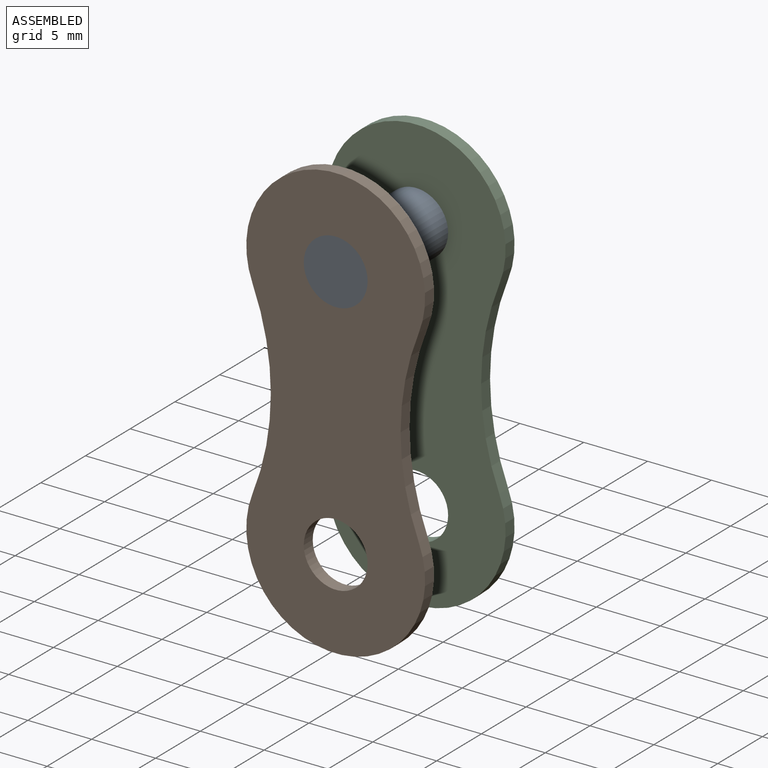
[diagram: assembled view]
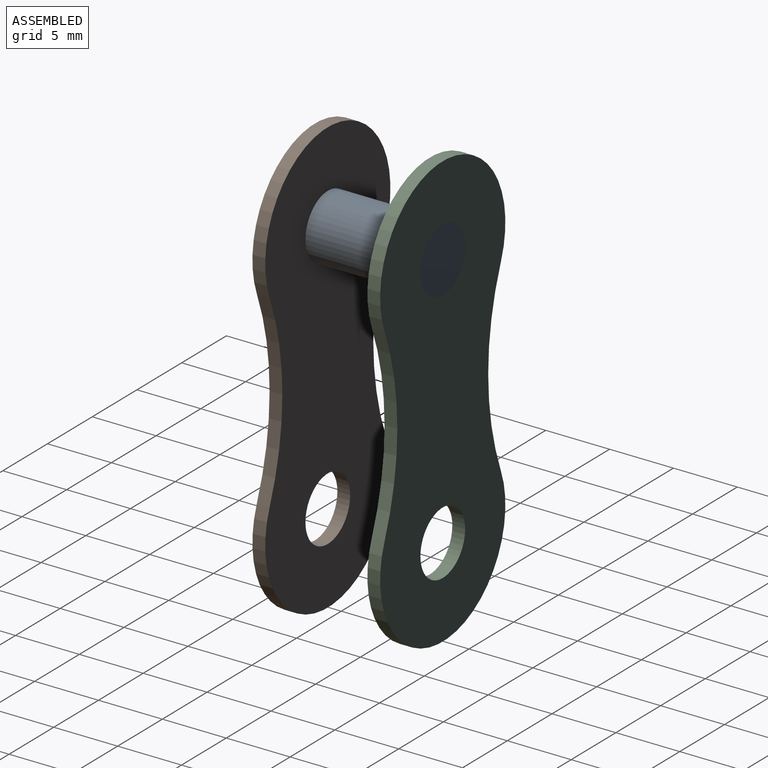
[diagram: assembled view, second angle]
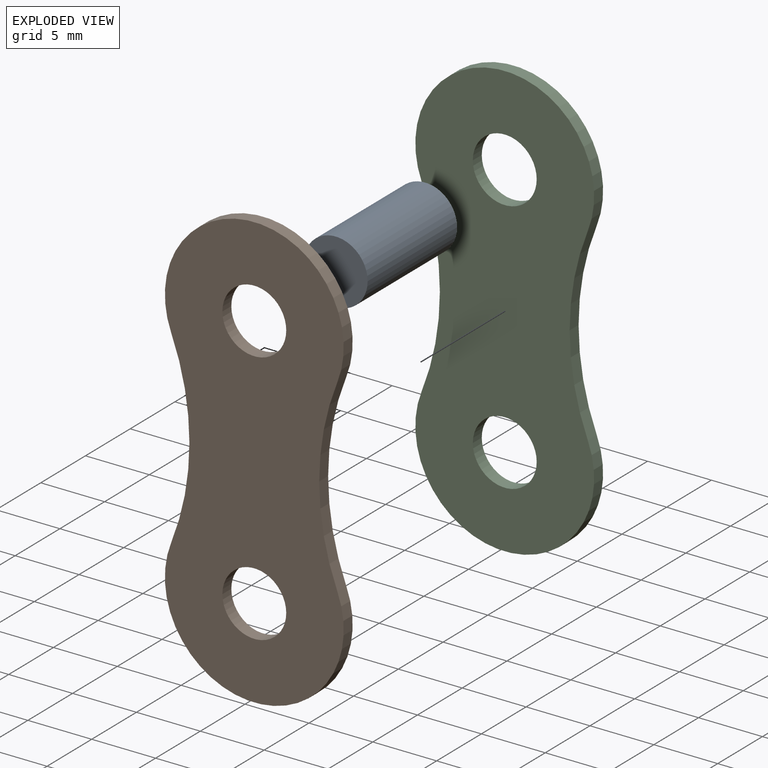
[diagram: exploded view]
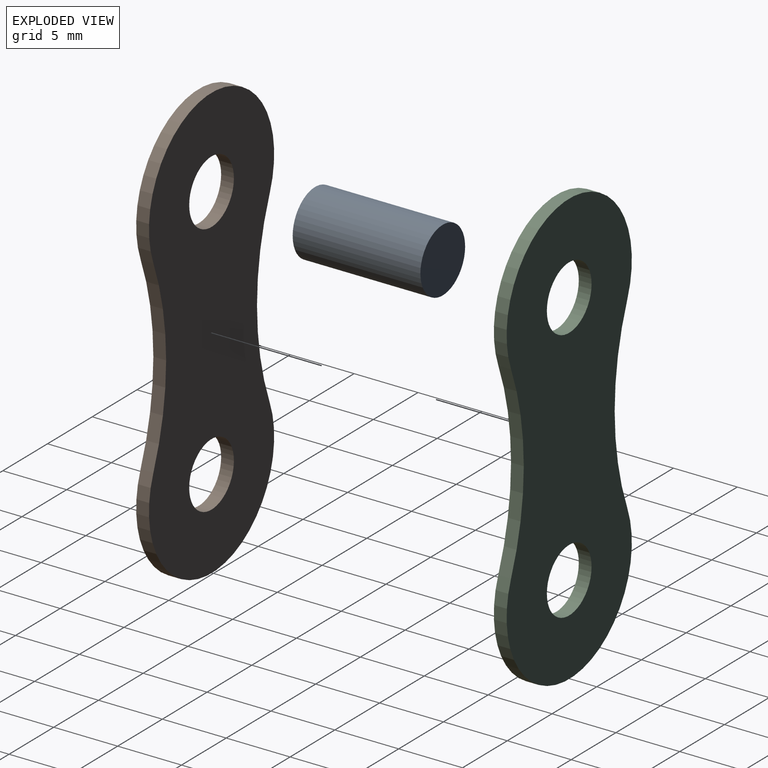
[diagram: exploded view, second angle]
ASSEMBLY  parts=3 mates=2
PART A: 3 faces, bbox 5x10x5 mm
  f0: cylinder r=2.5mm len=10mm, axis (0,1,0), area 157.1mm2, adj f1,f2
  f1: plane 5x5mm, normal (0,-1,0), area 19.6mm2, adj f0
  f2: plane 5x5mm, normal (0,1,0), area 19.6mm2, adj f0
PART B: 8 faces, bbox 14x1x34 mm
  f0: cylinder r=20mm len=14.82mm, axis (0,1,0), area 15.2mm2, adj f1,f5,f6,f7
  f1: cylinder r=7mm len=14mm, axis (0,1,0), area 27.3mm2, adj f0,f2,f6,f7
  f2: cylinder r=20mm len=14.82mm, axis (0,1,0), area 15.2mm2, adj f1,f5,f6,f7
  f3: cylinder r=2.5mm len=5mm, axis (0,1,0), area 15.7mm2, adj f6,f7
  f4: cylinder r=2.5mm len=5mm, axis (0,1,0), area 15.7mm2, adj f6,f7
  f5: cylinder r=7mm len=14mm, axis (0,1,0), area 27.3mm2, adj f0,f2,f6,f7
  f6: plane 34x14mm, normal (0,-1,0), area 349.9mm2, adj f0,f1,f2,f3,f4,f5
  f7: plane 34x14mm, normal (0,1,0), area 349.9mm2, adj f0,f1,f2,f3,f4,f5
PART C: same geometry as B
PLACE A t=(6.03,8.67,10.28)mm
PLACE B t=(6.03,-0.33,10.28)mm
PLACE C t=(6.03,8.67,10.28)mm
MATE fastened A.f0 <-> B.f3  axis (0,-1,0) through (6.03,-1.33,10.28)mm
MATE fastened A.f0 <-> C.f3  axis (0,1,0) through (6.03,8.67,10.28)mm
